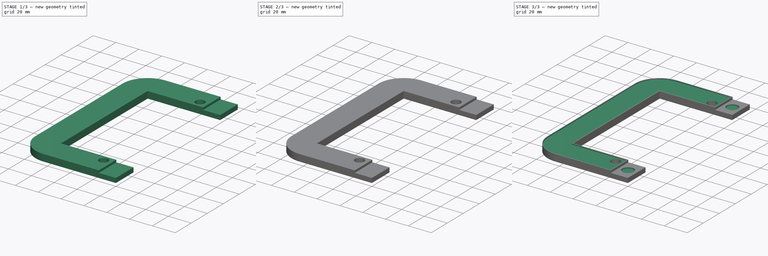
[diagram: build sequence overview — one tinted view per stage of 3, left to right]
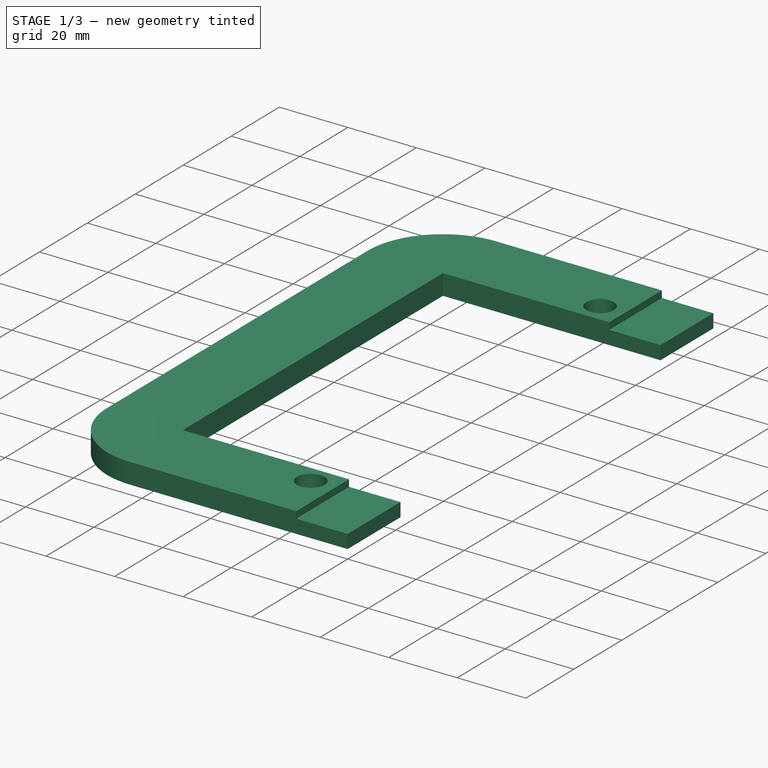
[diagram: stage 1 of 3 — iso view after this stage's code; geometry added in this stage tinted green]
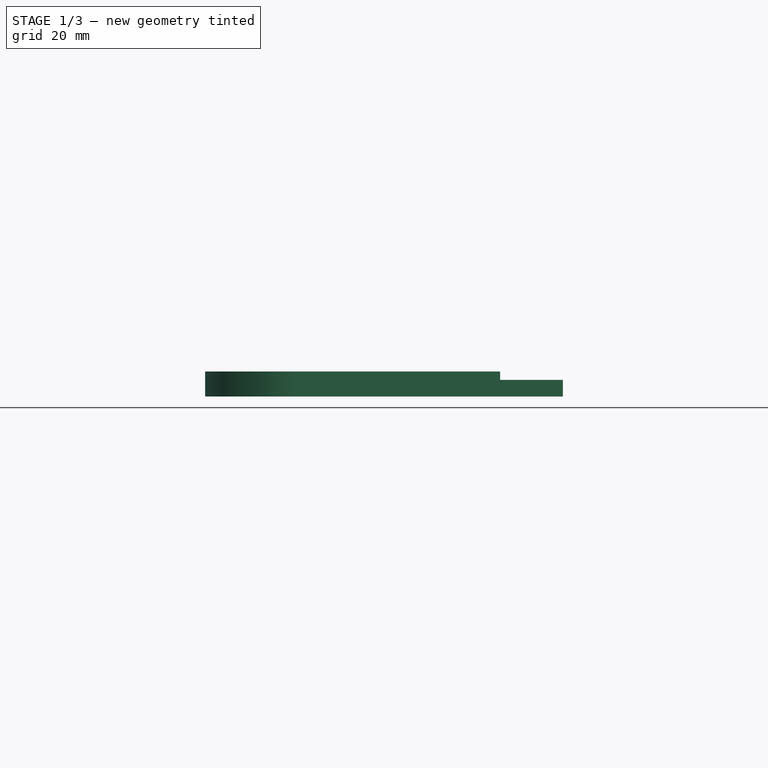
[diagram: stage 1 of 3 — front view after this stage's code; geometry added in this stage tinted green]
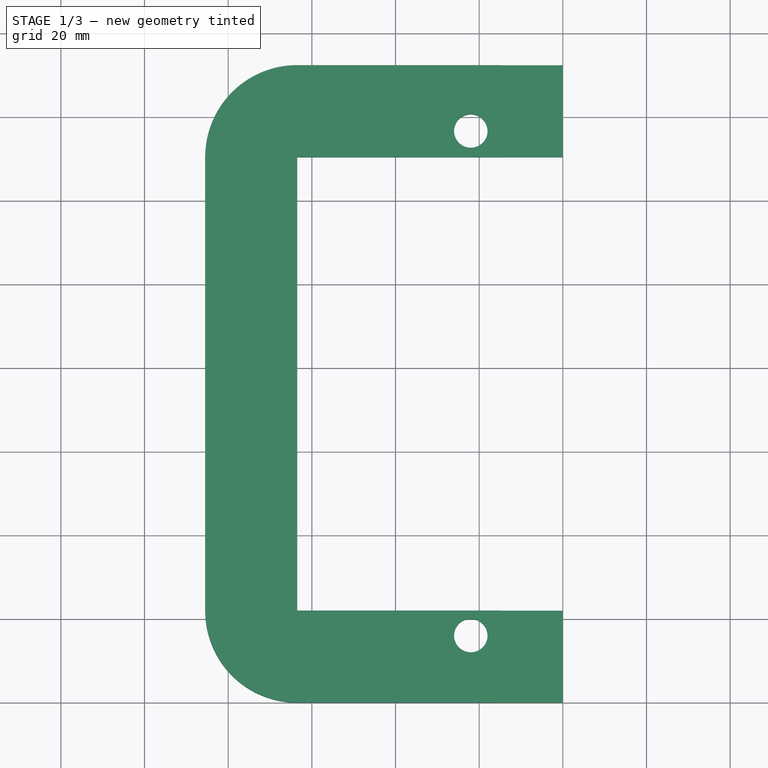
[diagram: stage 1 of 3 — top view after this stage's code; geometry added in this stage tinted green]
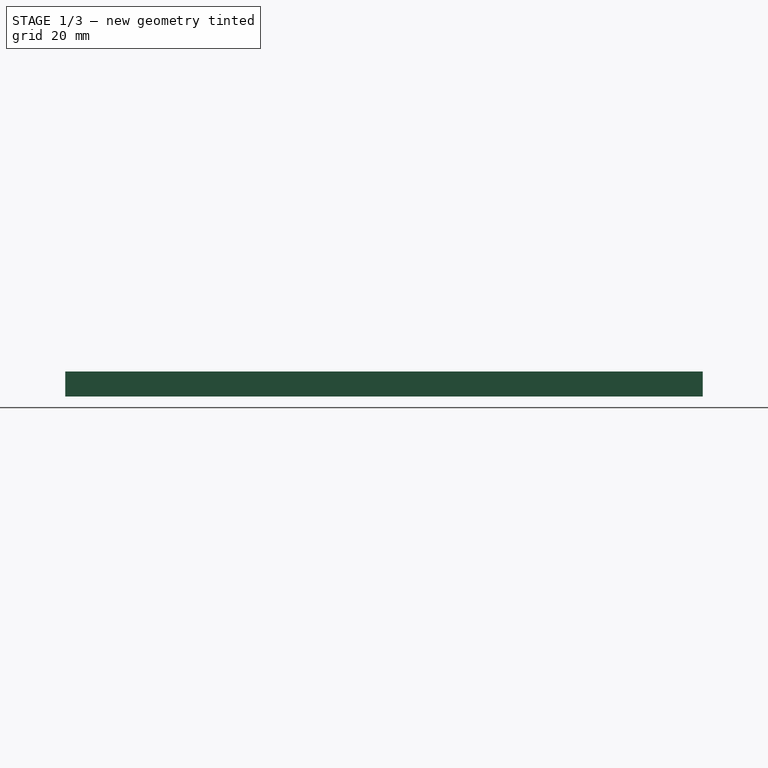
[diagram: stage 1 of 3 — right view after this stage's code; geometry added in this stage tinted green]
FCSTD DOCUMENT  (FreeCAD 0.21R33675 (Git))
Label: License_plate_frame
License: All rights reserved
LicenseURL: http://en.wikipedia.org/wiki/All_rights_reserved
objects: Sketcher::SketchObject×6, PartDesign::Pocket×4, PartDesign::Pad×1, PartDesign::Body×1
note: 17 computed .brp shape members not serialized (recipe doc carries the construction recipe); baked Part::Feature solids carry a one-line shape summary decoded from their .brp

FEATURE [Sketcher::SketchObject] Sketch  label="End Bracket"
  FullyConstrained = true
  MapMode = 5
  Support = -> [XY_Plane]
  sketch-geometry (12):
    g0: LineSegment StartX=0 StartY=152.4 StartZ=0 EndX=-63.5 EndY=152.4 EndZ=0
    g1: ArcOfCircle CenterX=-63.5 CenterY=130.4 CenterZ=0 NormalX=0 NormalY=0 NormalZ=1 AngleXU=0 Radius=22 StartAngle=1.5708 EndAngle=3.14159
    g2: LineSegment StartX=-85.5 StartY=130.4 StartZ=0 EndX=-85.5 EndY=22 EndZ=0
    g3: ArcOfCircle CenterX=-63.5 CenterY=22 CenterZ=0 NormalX=0 NormalY=0 NormalZ=1 AngleXU=0 Radius=22 StartAngle=3.14159 EndAngle=4.71239
    g4: LineSegment StartX=-63.5 StartY=0 StartZ=0 EndX=0 EndY=0 EndZ=0
    g5: LineSegment StartX=0 StartY=0 StartZ=0 EndX=0 EndY=22 EndZ=0
    g6: LineSegment StartX=0 StartY=22 StartZ=0 EndX=-63.5 EndY=22 EndZ=0
    g7: LineSegment StartX=-63.5 StartY=22 StartZ=0 EndX=-63.5 EndY=130.4 EndZ=0
    g8: LineSegment StartX=-63.5 StartY=130.4 StartZ=0 EndX=0 EndY=130.4 EndZ=0
    g9: LineSegment StartX=0 StartY=130.4 StartZ=0 EndX=0 EndY=152.4 EndZ=0
    g10: Circle CenterX=-22 CenterY=136.652 CenterZ=0 NormalX=0 NormalY=0 NormalZ=1 AngleXU=0 Radius=4
    g11: Circle CenterX=-22 CenterY=16.02 CenterZ=0 NormalX=0 NormalY=0 NormalZ=1 AngleXU=0 Radius=4
  constraints (32):
    c: Horizontal(g0)
    c: Tangent(g0,g1) = -1.5708
    c: Tangent(g1,g2) = -1.5708
    c: Tangent(g2,g3) = -1.5708
    c: Tangent(g3,g4) = -1.5708
    c: Coincident(g4,g5)
    c: Vertical(g5)
    c: Coincident(g5,g6)
    c: Coincident(g6,g3)
    c: Horizontal(g6)
    c: Coincident(g6,g7)
    c: Coincident(g7,g1)
    c: Vertical(g7)
    c: Coincident(g7,g8)
    c: Coincident(g8,g9)
    c: Coincident(g9,g0)
    c: Parallel(g2,g7)
    c: Parallel(g7,g9)
    c: Parallel(g0,g8)
    c: Parallel(g6,g4)
    c: DistanceY(g2,g1) = 108.4
    c: DistanceX(g1,g8) = 63.5
    c: DistanceX(g3,g5) = 63.5
    c: DistanceY(g4,g5) = 22
    c: Block(g2)
    c: Radius(g11) = 4
    c: Radius(g10) = 4
    c: DistanceY(g10,g0) = 15.748
    c: DistanceY(g4,g11) = 16.02
    c: Coincident(g-1,g4)
    c: DistanceX(g1,g10) = 63.5
    c: DistanceX(g2,g11) = 63.5
FEATURE [PartDesign::Pad] Pad
  Direction = (0,0,1)
  Length = 6
  Length2 = 10
  Profile = -> Sketch
  ReferenceAxis = -> Sketch [N_Axis]
  Type = 0
FEATURE [Sketcher::SketchObject] Sketch001  label="End"
  FullyConstrained = true
  MapMode = 5
  Placement = pos=(0,0,6) rot=(0,0,1;0rad)
  Support = -> [Pad]
FEATURE [Sketcher::SketchObject] Sketch002  label="Notch"
  ExternalGeometry = -> [Pad]
  FullyConstrained = true
  MapMode = 5
  Placement = pos=(0,0,6) rot=(0,0,1;0rad)
  Support = -> [Pad]
  sketch-geometry (8):
    g0: LineSegment StartX=-15 StartY=130.4 StartZ=0 EndX=0 EndY=130.4 EndZ=0
    g1: LineSegment StartX=0 StartY=130.4 StartZ=0 EndX=0 EndY=152.4 EndZ=0
    g2: LineSegment StartX=0 StartY=152.4 StartZ=0 EndX=-15 EndY=152.4 EndZ=0
    g3: LineSegment StartX=-15 StartY=152.4 StartZ=0 EndX=-15 EndY=130.4 EndZ=0
    g4: LineSegment StartX=-15 StartY=22 StartZ=0 EndX=0 EndY=22 EndZ=0
    g5: LineSegment StartX=0 StartY=22 StartZ=0 EndX=0 EndY=0 EndZ=0
    g6: LineSegment StartX=0 StartY=0 StartZ=0 EndX=-15 EndY=0 EndZ=0
    g7: LineSegment StartX=-15 StartY=0 StartZ=0 EndX=-15 EndY=22 EndZ=0
  constraints (22):
    c: Coincident(g0,g1)
    c: Coincident(g1,g2)
    c: Coincident(g2,g3)
    c: Coincident(g3,g0)
    c: Horizontal(g0)
    c: Horizontal(g2)
    c: Vertical(g1)
    c: Vertical(g3)
    c: Coincident(g4,g5)
    c: Coincident(g5,g6)
    c: Coincident(g6,g7)
    c: Coincident(g7,g4)
    c: Horizontal(g4)
    c: Horizontal(g6)
    c: Vertical(g5)
    c: Vertical(g7)
    c: Coincident(g0,g-3)
    c: Coincident(g4,g-4)
    c: DistanceX(g6,g5) = 15
    c: DistanceY(g6,g4) = 22
    c: DistanceX(g0,g0) = 15
    c: DistanceY(g0,g2) = 22
FEATURE [PartDesign::Pocket] Pocket
  BaseFeature = -> Pad
  Direction = (0,0,-1)
  Length = 2
  Length2 = 5
  Profile = -> Sketch002
  ReferenceAxis = -> Sketch002 [N_Axis]
  Type = 0
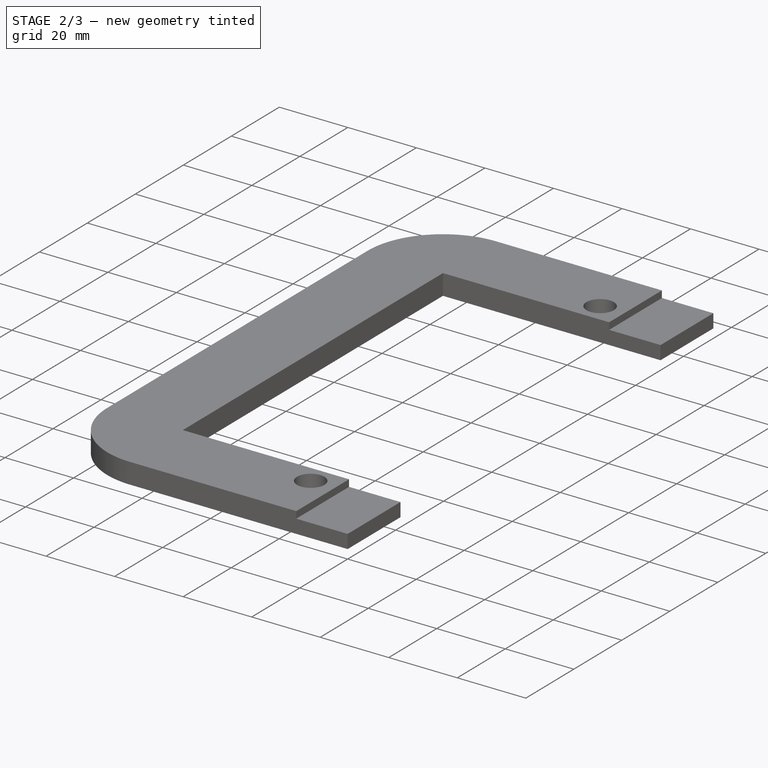
[diagram: stage 2 of 3 — iso view after this stage's code; geometry added in this stage tinted green]
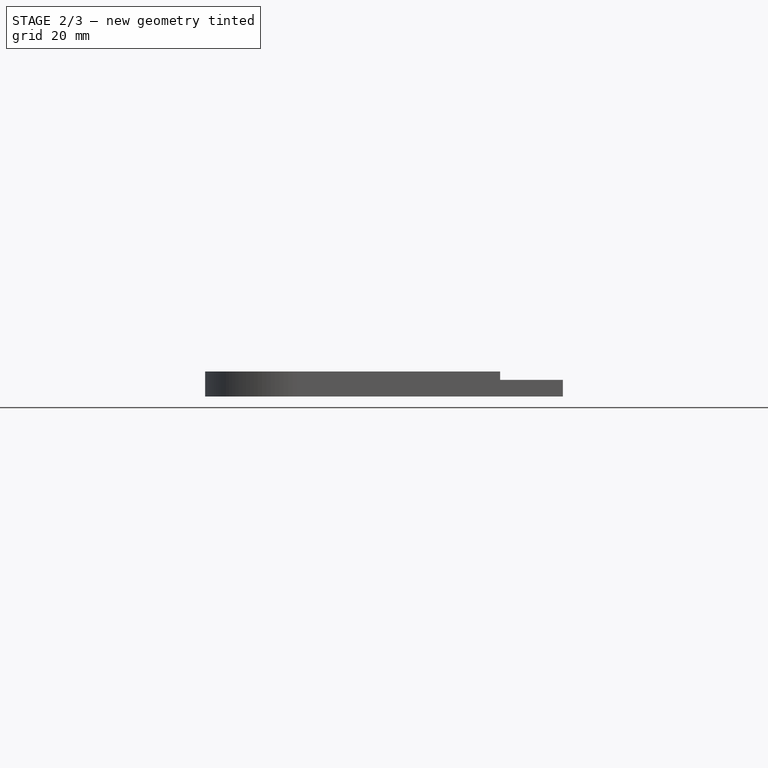
[diagram: stage 2 of 3 — front view after this stage's code; geometry added in this stage tinted green]
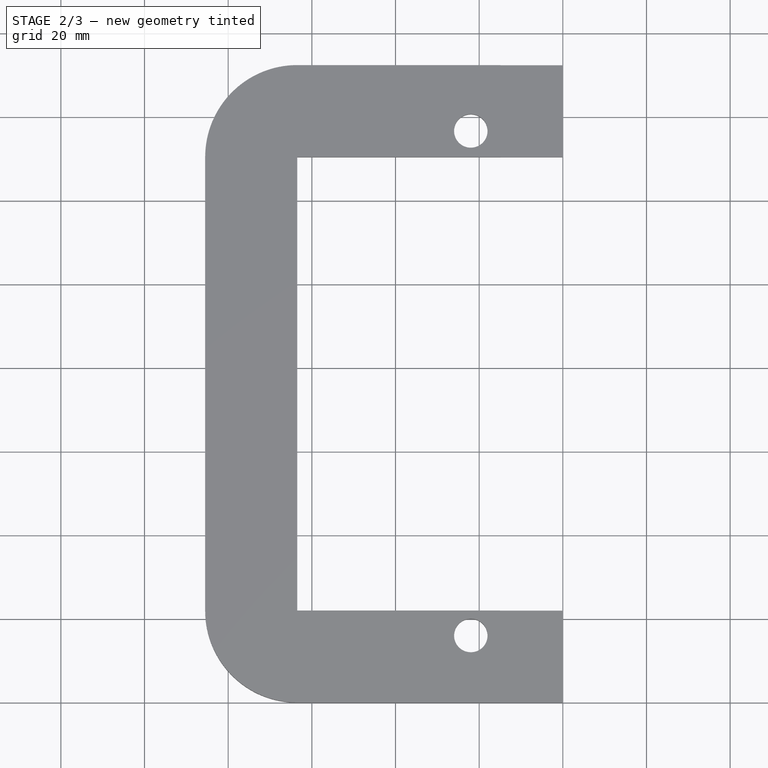
[diagram: stage 2 of 3 — top view after this stage's code; geometry added in this stage tinted green]
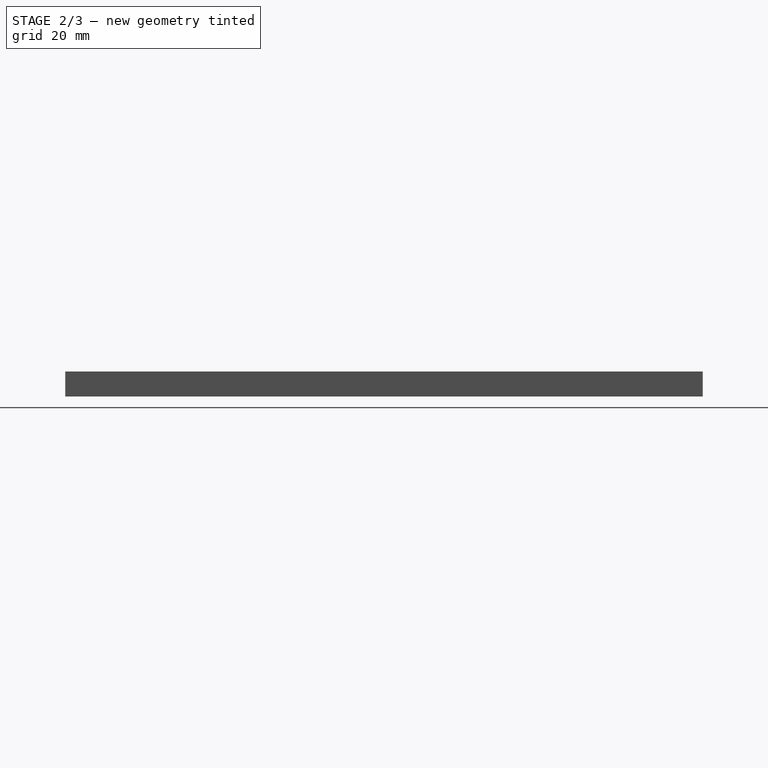
[diagram: stage 2 of 3 — right view after this stage's code; geometry added in this stage tinted green]
FEATURE [Sketcher::SketchObject] Sketch003
  ExternalGeometry = -> [Pocket]
  FullyConstrained = true
  MapMode = 5
  Placement = pos=(0,0,0) rot=(1,0,0;3.14159rad)
  Support = -> [Pocket]
  sketch-geometry (2):
    g0: Circle CenterX=-7.5 CenterY=-11 CenterZ=0 NormalX=0 NormalY=0 NormalZ=1 AngleXU=0 Radius=4
    g1: Circle CenterX=-7.5 CenterY=-141.4 CenterZ=0 NormalX=0 NormalY=0 NormalZ=1 AngleXU=0 Radius=4
  constraints (6):
    c: Radius(g0) = 4
    c: Radius(g1) = 4
    c: DistanceY(g-3,g0) = 11
    c: DistanceX(g0,g-3) = 7.5
    c: DistanceX(g1,g-4) = 7.5
    c: DistanceY(g1,g-4) = 11
FEATURE [PartDesign::Pocket] Pocket001
  BaseFeature = -> Pocket
  Direction = (0,0,1)
  Length = 2
  Length2 = 5
  Profile = -> Sketch003
  ReferenceAxis = -> Sketch003 [N_Axis]
  Type = 0
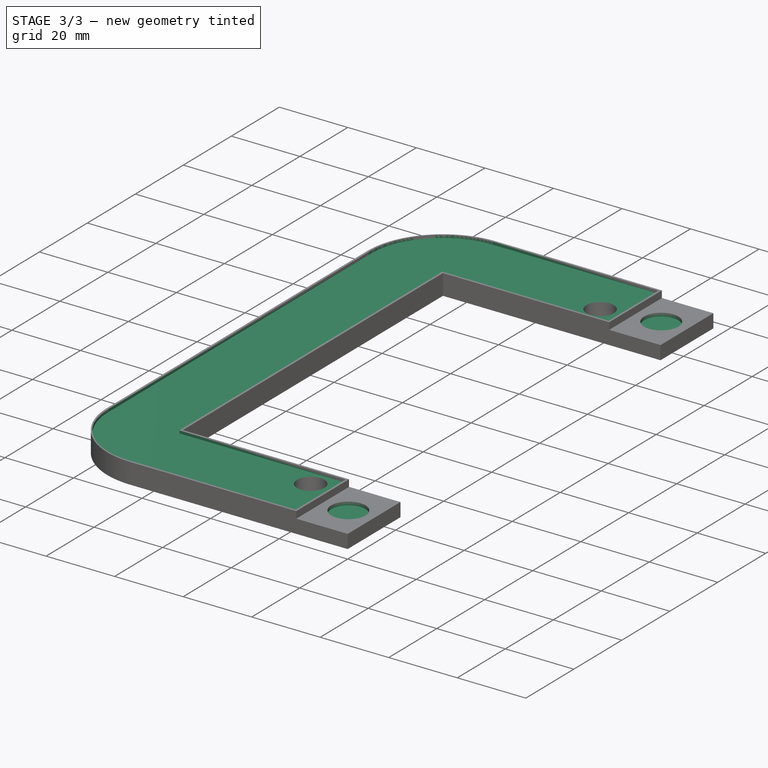
[diagram: stage 3 of 3 — iso view after this stage's code; geometry added in this stage tinted green]
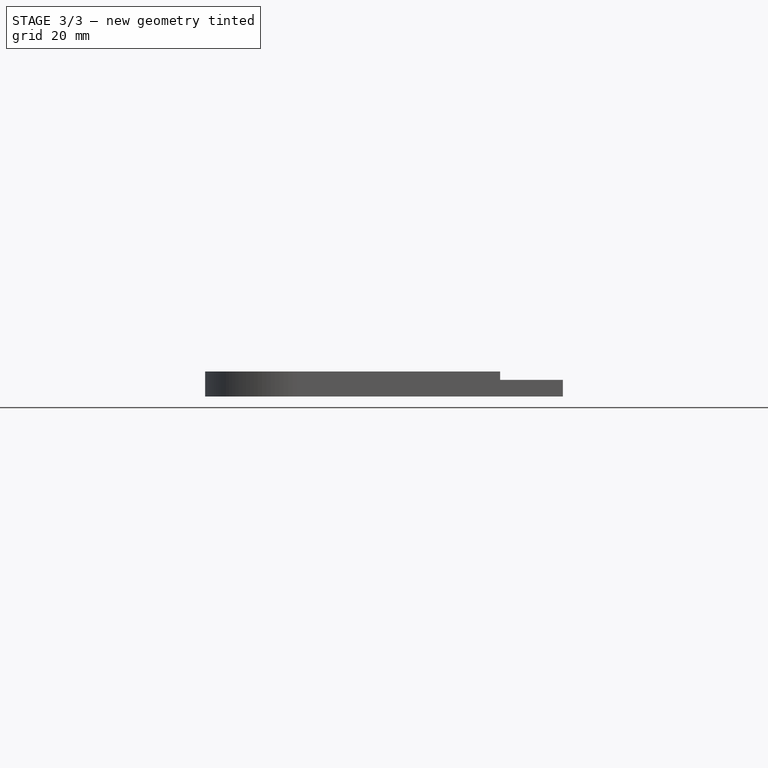
[diagram: stage 3 of 3 — front view after this stage's code; geometry added in this stage tinted green]
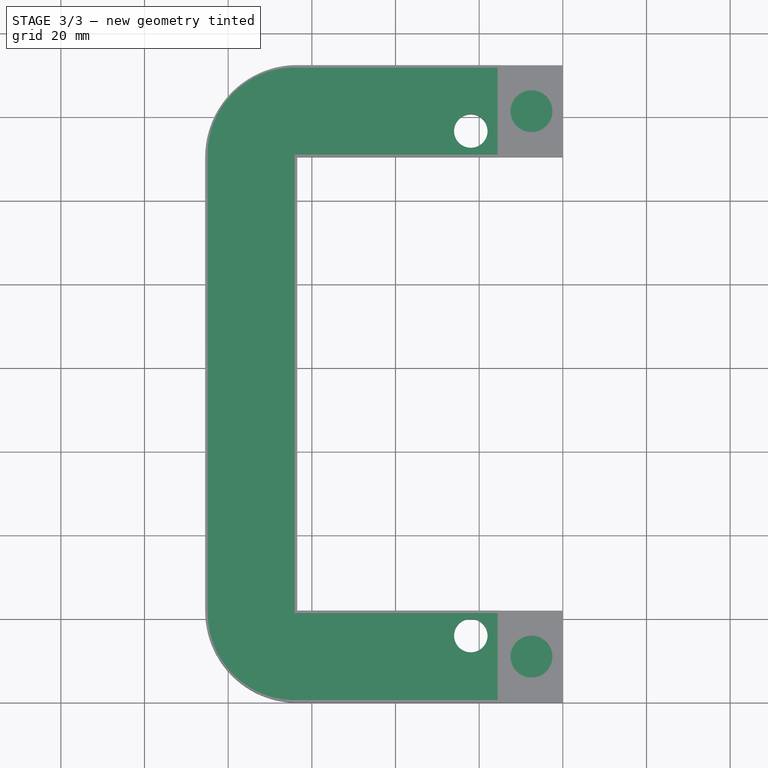
[diagram: stage 3 of 3 — top view after this stage's code; geometry added in this stage tinted green]
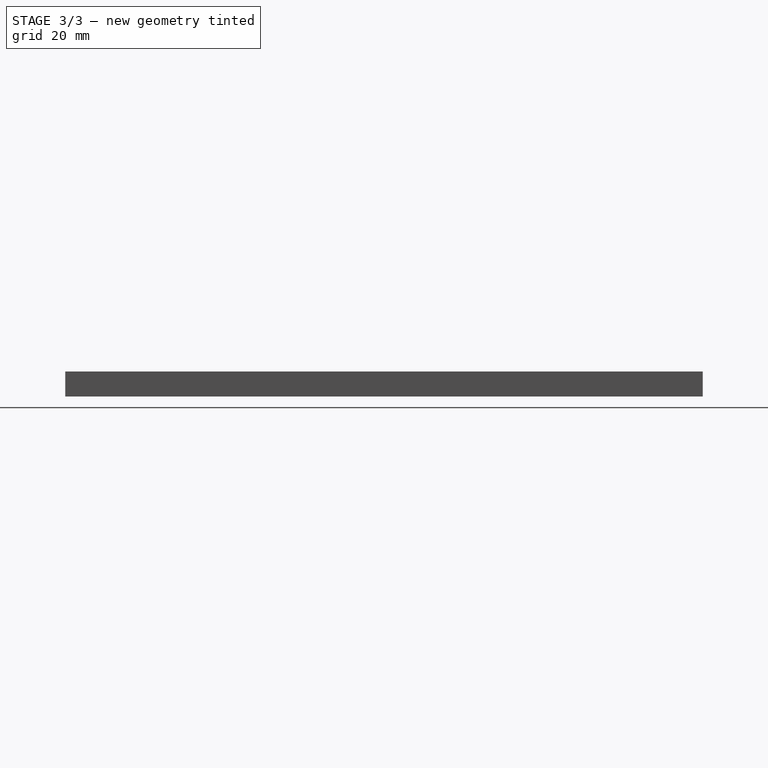
[diagram: stage 3 of 3 — right view after this stage's code; geometry added in this stage tinted green]
FEATURE [Sketcher::SketchObject] Sketch004
  ExternalGeometry = -> [Pocket001]
  FullyConstrained = true
  MapMode = 5
  Placement = pos=(0,0,4) rot=(0,0,1;0rad)
  Support = -> [Pocket001]
  sketch-geometry (2):
    g0: Circle CenterX=-7.5 CenterY=141.4 CenterZ=0 NormalX=0 NormalY=0 NormalZ=1 AngleXU=0 Radius=5
    g1: Circle CenterX=-7.5 CenterY=11 CenterZ=0 NormalX=0 NormalY=0 NormalZ=1 AngleXU=0 Radius=5
  constraints (6):
    c: DistanceX(g-3,g0) = 7.5
    c: DistanceY(g-3,g0) = 11
    c: DistanceX(g-4,g1) = 7.5
    c: DistanceY(g1,g-4) = 11
    c: Radius(g0) = 5
    c: Radius(g1) = 5
FEATURE [PartDesign::Pocket] Pocket002
  BaseFeature = -> Pocket001
  Direction = (0,0,-1)
  Length = 1
  Length2 = 5
  Profile = -> Sketch004
  ReferenceAxis = -> Sketch004 [N_Axis]
  Type = 0
FEATURE [Sketcher::SketchObject] Sketch006
  ExternalGeometry = -> [Pocket002]
  FullyConstrained = true
  MapMode = 5
  Placement = pos=(0,0,6) rot=(0,0,1;0rad)
  Support = -> [Pocket002]
  sketch-geometry (10):
    g0: LineSegment StartX=-15.6 StartY=131 StartZ=0 EndX=-15.6 EndY=151.8 EndZ=0
    g1: LineSegment StartX=-15.6 StartY=151.8 StartZ=0 EndX=-64.1 EndY=151.8 EndZ=0
    g2: ArcOfCircle CenterX=-64.1 CenterY=130.97 CenterZ=0 NormalX=0 NormalY=0 NormalZ=1 AngleXU=0 Radius=20.83 StartAngle=1.5708 EndAngle=3.19527
    g3: LineSegment StartX=-84.9 StartY=129.852 StartZ=0 EndX=-84.9 EndY=21.4 EndZ=0
    g4: ArcOfCircle CenterX=-64.07 CenterY=21.4 CenterZ=0 NormalX=0 NormalY=0 NormalZ=1 AngleXU=0 Radius=20.83 StartAngle=3.14159 EndAngle=4.65871
    g5: LineSegment StartX=-65.1875 StartY=0.6 StartZ=0 EndX=-15.6 EndY=0.6 EndZ=0
    g6: LineSegment StartX=-15.6 StartY=0.6 StartZ=0 EndX=-15.6 EndY=21.4 EndZ=0
    g7: LineSegment StartX=-15.6 StartY=21.4 StartZ=0 EndX=-64.1 EndY=21.4 EndZ=0
    g8: LineSegment StartX=-64.1 StartY=21.4 StartZ=0 EndX=-64.1 EndY=131 EndZ=0
    g9: LineSegment StartX=-64.1 StartY=131 StartZ=0 EndX=-15.6 EndY=131 EndZ=0
  constraints (30):
    c: Coincident(g0,g1)
    c: Horizontal(g1)
    c: Tangent(g1,g2) = -1.5708
    c: Coincident(g2,g3)
    c: Vertical(g3)
    c: Tangent(g3,g4) = -1.5708
    c: Coincident(g4,g5)
    c: Horizontal(g5)
    c: Coincident(g5,g6)
    c: Coincident(g6,g7)
    c: Horizontal(g7)
    c: Coincident(g7,g8)
    c: Vertical(g8)
    c: Coincident(g8,g9)
    c: Coincident(g9,g0)
    c: Horizontal(g9)
    c: DistanceX(g0,g-4) = 0.6
    c: DistanceY(g0,g-4) = 0.6
    c: DistanceX(g0,g-3) = 0.6
    c: DistanceY(g-3,g0) = 0.6
    c: DistanceX(g8,g-11) = 0.6
    c: DistanceX(g-11,g2) = 0.6
    c: DistanceX(g1,g-11) = 0.6
    c: DistanceY(g3,g-10) = 0.6
    c: DistanceY(g7,g-9) = 0.6
    c: DistanceY(g-9,g4) = 0.6
    c: DistanceX(g6,g-7) = 0.6
    c: DistanceX(g5,g-8) = 0.6
    c: Radius(g4) = 20.83
    c: Radius(g2) = 20.83
FEATURE [PartDesign::Pocket] Pocket003
  BaseFeature = -> Pocket002
  Direction = (0,0,-1)
  Length = 0.8
  Length2 = 5
  Profile = -> Sketch006
  ReferenceAxis = -> Sketch006 [N_Axis]
  Type = 0
  UseCustomVector = true
FEATURE [PartDesign::Body] Body
  Group = -> [Sketch,Pad,Sketch001,Sketch002,Pocket,Sketch003,Pocket001,Sketch004,Pocket002,Sketch006,Pocket003]
  Origin = -> Origin
  Tip = -> Pocket003
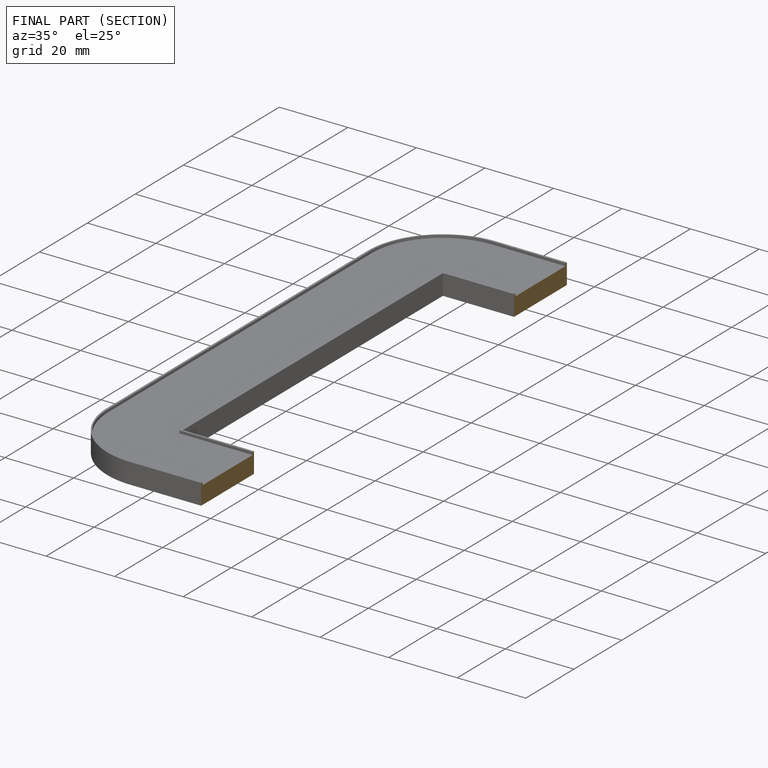
[diagram: finished part — half-section view (interior)]
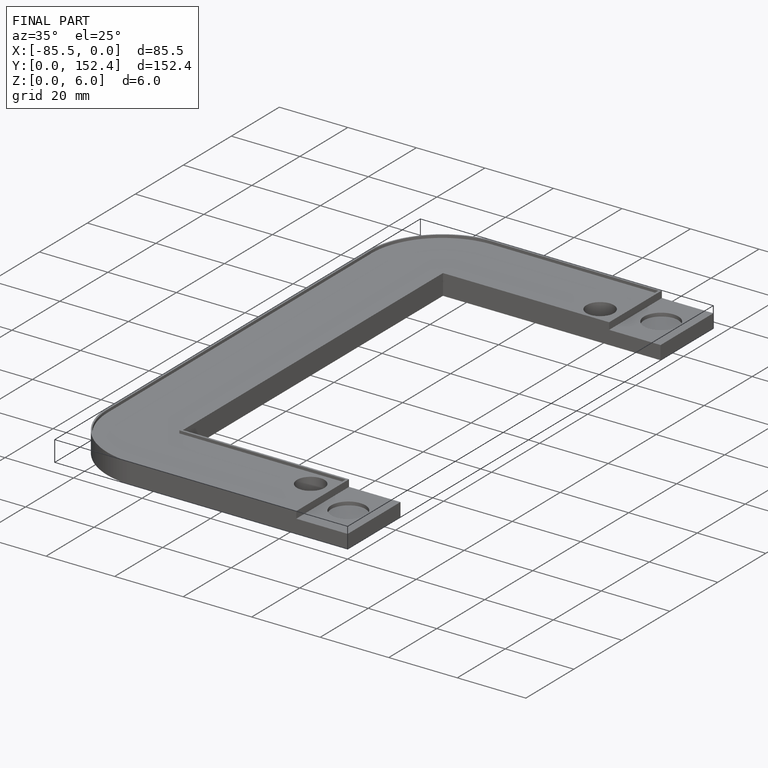
[diagram: finished part — iso view with bounding-box wireframe]
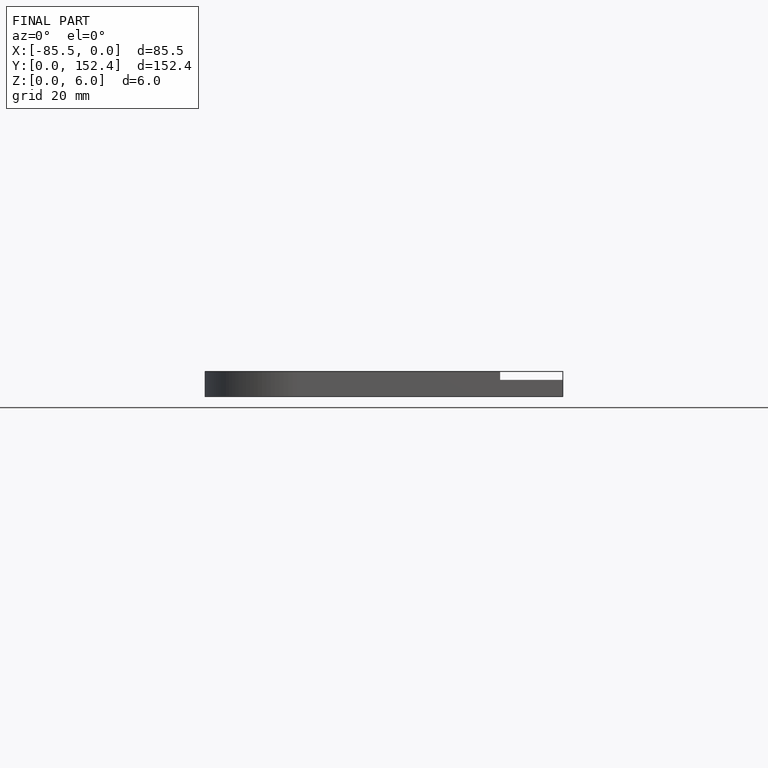
[diagram: finished part — front view with bounding-box wireframe]
